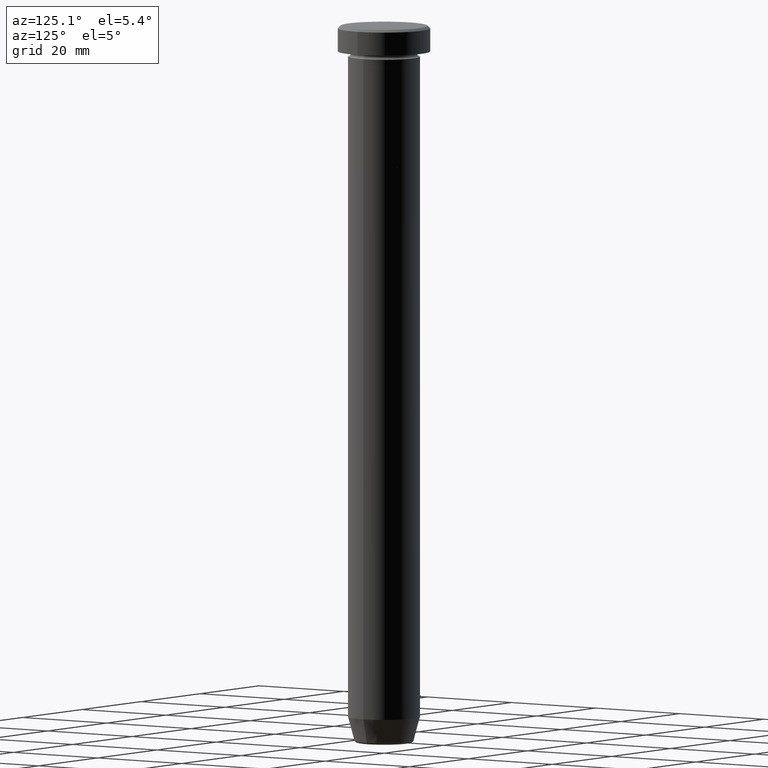
[diagram: clean part render]
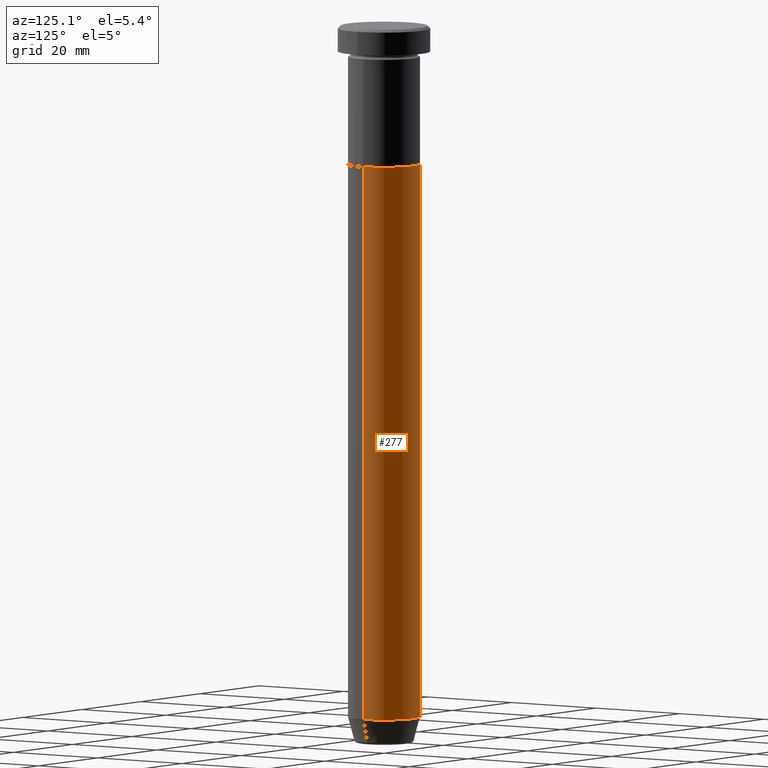
[diagram: same view with one face highlighted and labeled with its STEP entity id]
A machine part, auxiliary view. The second image highlights one B-rep face of the part: STEP entity #277.
In plain terms, the highlighted cylindrical surface (edge-blend (fillet) strip) has radius 7 mm, axis along (-0, -0, 1).
Its self-contained STEP definition (entity closure, byte-faithful):
#8 = AXIS2_PLACEMENT_3D ( 'NONE', #577, #136, #318 ) ;
#13 = ORIENTED_EDGE ( 'NONE', *, *, #586, .F. ) ;
#19 = ORIENTED_EDGE ( 'NONE', *, *, #283, .T. ) ;
#35 = CARTESIAN_POINT ( 'NONE',  ( 7.000000000000000000, 0.000000000000000000, -27.00000000000000000 ) ) ;
#42 = CIRCLE ( 'NONE', #8, 7.000000000000000000 ) ;
#82 = CARTESIAN_POINT ( 'NONE',  ( -7.000000000000000000, 8.572527594031473190E-16, -135.0000000000000000 ) ) ;
#83 = FACE_OUTER_BOUND ( 'NONE', #228, .T. ) ;
#124 = LINE ( 'NONE', #216, #291 ) ;
#129 = VERTEX_POINT ( 'NONE', #507 ) ;
#134 = DIRECTION ( 'NONE',  ( 1.000000000000000000, 0.000000000000000000, 0.000000000000000000 ) ) ;
#136 = DIRECTION ( 'NONE',  ( -0.000000000000000000, -0.000000000000000000, 1.000000000000000000 ) ) ;
#142 = DIRECTION ( 'NONE',  ( -0.000000000000000000, -0.000000000000000000, 1.000000000000000000 ) ) ;
#205 = CIRCLE ( 'NONE', #572, 7.000000000000000000 ) ;
#216 = CARTESIAN_POINT ( 'NONE',  ( -7.000000000000000000, 8.572527594031473190E-16, 0.000000000000000000 ) ) ;
#228 = EDGE_LOOP ( 'NONE', ( #19, #575, #359, #13 ) ) ;
#268 = AXIS2_PLACEMENT_3D ( 'NONE', #445, #392, #134 ) ;
#277 = ADVANCED_FACE ( 'NONE', ( #83 ), #484, .T. ) ;
#283 = EDGE_CURVE ( 'NONE', #423, #463, #42, .T. ) ;
#291 = VECTOR ( 'NONE', #142, 1000.000000000000000 ) ;
#318 = DIRECTION ( 'NONE',  ( 1.000000000000000000, 0.000000000000000000, 0.000000000000000000 ) ) ;
#346 = DIRECTION ( 'NONE',  ( -0.000000000000000000, -0.000000000000000000, 1.000000000000000000 ) ) ;
#348 = DIRECTION ( 'NONE',  ( -0.000000000000000000, -0.000000000000000000, 1.000000000000000000 ) ) ;
#359 = ORIENTED_EDGE ( 'NONE', *, *, #424, .F. ) ;
#378 = CARTESIAN_POINT ( 'NONE',  ( 7.000000000000000000, 0.000000000000000000, -135.0000000000000000 ) ) ;
#385 = LINE ( 'NONE', #571, #444 ) ;
#392 = DIRECTION ( 'NONE',  ( -0.000000000000000000, -0.000000000000000000, 1.000000000000000000 ) ) ;
#401 = VERTEX_POINT ( 'NONE', #35 ) ;
#423 = VERTEX_POINT ( 'NONE', #378 ) ;
#424 = EDGE_CURVE ( 'NONE', #401, #129, #205, .T. ) ;
#444 = VECTOR ( 'NONE', #348, 1000.000000000000000 ) ;
#445 = CARTESIAN_POINT ( 'NONE',  ( 0.000000000000000000, 0.000000000000000000, 0.000000000000000000 ) ) ;
#452 = EDGE_CURVE ( 'NONE', #463, #129, #124, .T. ) ;
#463 = VERTEX_POINT ( 'NONE', #82 ) ;
#484 = CYLINDRICAL_SURFACE ( 'NONE', #268, 7.000000000000000000 ) ;
#501 = CARTESIAN_POINT ( 'NONE',  ( 0.000000000000000000, 0.000000000000000000, -27.00000000000000000 ) ) ;
#507 = CARTESIAN_POINT ( 'NONE',  ( -7.000000000000000000, 8.572527594031473190E-16, -27.00000000000000000 ) ) ;
#531 = DIRECTION ( 'NONE',  ( 1.000000000000000000, 0.000000000000000000, 0.000000000000000000 ) ) ;
#571 = CARTESIAN_POINT ( 'NONE',  ( 7.000000000000000000, 0.000000000000000000, 0.000000000000000000 ) ) ;
#572 = AXIS2_PLACEMENT_3D ( 'NONE', #501, #346, #531 ) ;
#575 = ORIENTED_EDGE ( 'NONE', *, *, #452, .T. ) ;
#577 = CARTESIAN_POINT ( 'NONE',  ( 0.000000000000000000, 0.000000000000000000, -135.0000000000000000 ) ) ;
#586 = EDGE_CURVE ( 'NONE', #423, #401, #385, .T. ) ;